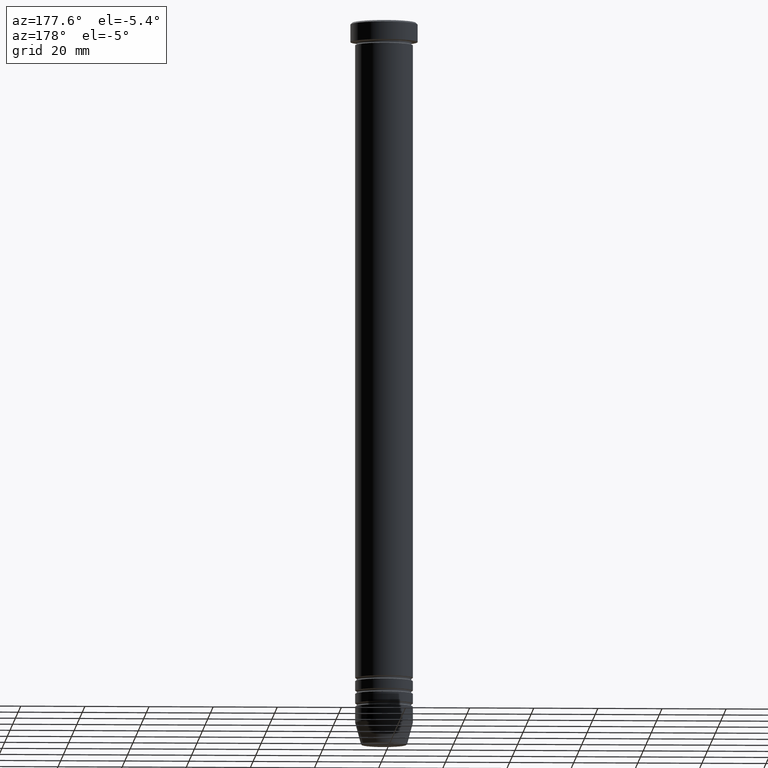
[diagram: clean part render]
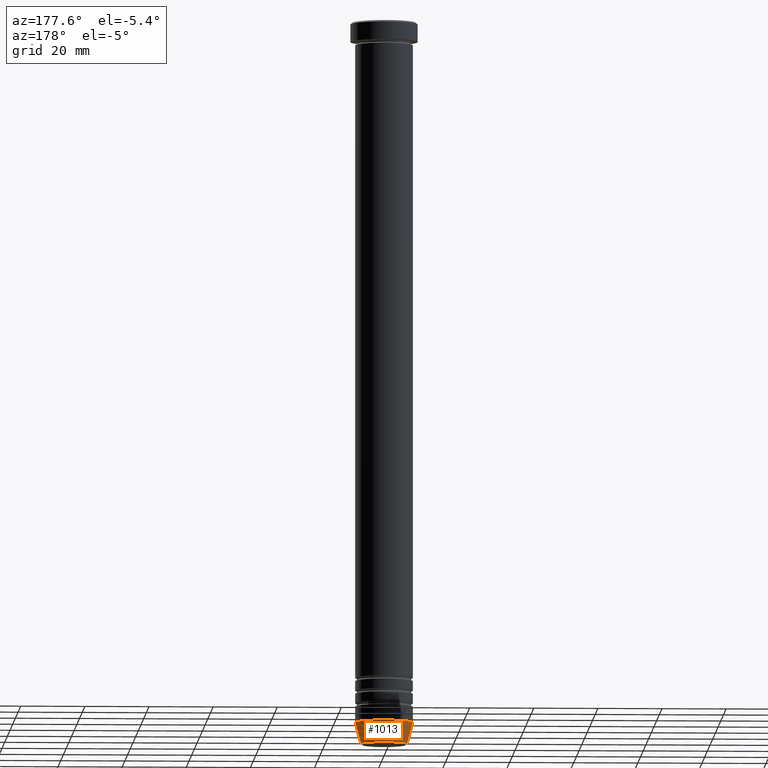
[diagram: same view with one face highlighted and labeled with its STEP entity id]
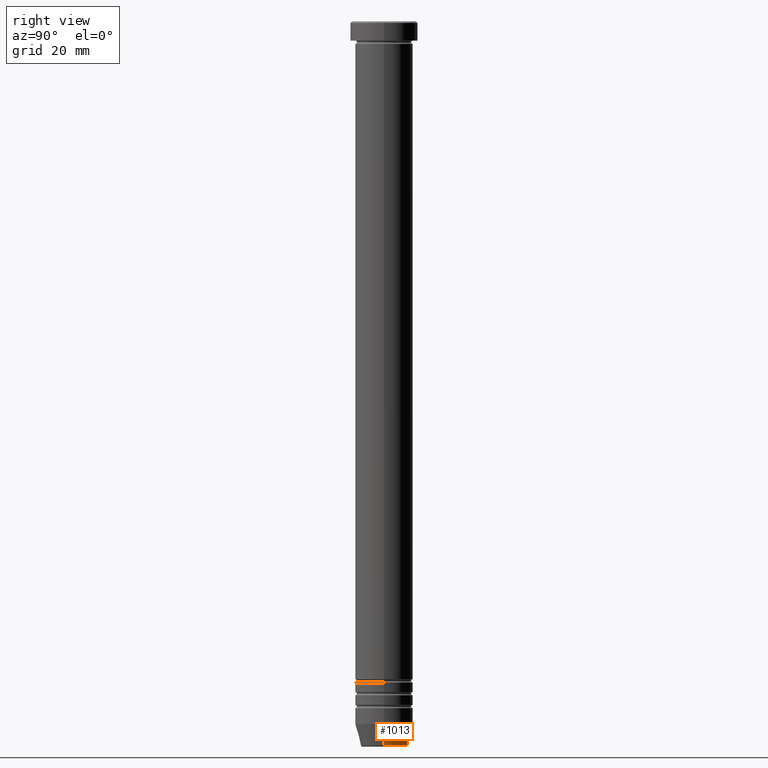
[diagram: same view with one face highlighted and labeled with its STEP entity id]
A machine part, auxiliary view. The second image highlights one B-rep face of the part: STEP entity #1013.
A second angle (right view) of the same face is appended — the face is thin or edge-on in the first view.
In plain terms, the highlighted conical surface has half-angle 15 deg.
Its self-contained STEP definition (entity closure, byte-faithful):
#14 = DIRECTION ( 'NONE',  ( -0.2588190451025205729, 3.169619151431761860E-17, 0.9659258262890683122 ) ) ;
#100 = DIRECTION ( 'NONE',  ( -1.000000000000000000, 0.000000000000000000, 0.000000000000000000 ) ) ;
#122 = AXIS2_PLACEMENT_3D ( 'NONE', #349, #1127, #880 ) ;
#169 = VERTEX_POINT ( 'NONE', #494 ) ;
#209 = ORIENTED_EDGE ( 'NONE', *, *, #701, .T. ) ;
#228 = LINE ( 'NONE', #661, #900 ) ;
#256 = CIRCLE ( 'NONE', #1100, 9.000000000000000000 ) ;
#284 = CARTESIAN_POINT ( 'NONE',  ( 7.223655072137196598, 0.000000000000000000, -225.6294095225512422 ) ) ;
#320 = CARTESIAN_POINT ( 'NONE',  ( 0.000000000000000000, 0.000000000000000000, -218.9999999999999716 ) ) ;
#325 = VERTEX_POINT ( 'NONE', #439 ) ;
#340 = ORIENTED_EDGE ( 'NONE', *, *, #667, .F. ) ;
#349 = CARTESIAN_POINT ( 'NONE',  ( 0.000000000000000000, 0.000000000000000000, -225.9999999999999716 ) ) ;
#372 = LINE ( 'NONE', #554, #1117 ) ;
#439 = CARTESIAN_POINT ( 'NONE',  ( -9.000000000000000000, 1.102182119232617714E-15, -218.9999999999999716 ) ) ;
#494 = CARTESIAN_POINT ( 'NONE',  ( -7.223655072137196598, 9.934123627281769054E-16, -225.6294095225512422 ) ) ;
#535 = CARTESIAN_POINT ( 'NONE',  ( 0.000000000000000000, 0.000000000000000000, -225.6294095225512422 ) ) ;
#539 = CARTESIAN_POINT ( 'NONE',  ( 9.000000000000000000, 0.000000000000000000, -218.9999999999999716 ) ) ;
#554 = CARTESIAN_POINT ( 'NONE',  ( 7.124355652982139908, 0.000000000000000000, -225.9999999999999716 ) ) ;
#557 = ORIENTED_EDGE ( 'NONE', *, *, #835, .F. ) ;
#577 = EDGE_CURVE ( 'NONE', #169, #325, #228, .T. ) ;
#661 = CARTESIAN_POINT ( 'NONE',  ( -7.124355652982139908, 8.724819346411930032E-16, -225.9999999999999716 ) ) ;
#663 = CONICAL_SURFACE ( 'NONE', #122, 7.124355652982139908, 0.2617993877991492413 ) ;
#666 = DIRECTION ( 'NONE',  ( -0.000000000000000000, -0.000000000000000000, 1.000000000000000000 ) ) ;
#667 = EDGE_CURVE ( 'NONE', #865, #946, #372, .T. ) ;
#701 = EDGE_CURVE ( 'NONE', #865, #169, #936, .T. ) ;
#713 = DIRECTION ( 'NONE',  ( 0.2588190451025205729, 0.000000000000000000, 0.9659258262890683122 ) ) ;
#757 = EDGE_LOOP ( 'NONE', ( #209, #849, #557, #340 ) ) ;
#835 = EDGE_CURVE ( 'NONE', #946, #325, #256, .T. ) ;
#849 = ORIENTED_EDGE ( 'NONE', *, *, #577, .T. ) ;
#865 = VERTEX_POINT ( 'NONE', #284 ) ;
#880 = DIRECTION ( 'NONE',  ( 1.000000000000000000, 0.000000000000000000, 0.000000000000000000 ) ) ;
#892 = DIRECTION ( 'NONE',  ( -0.000000000000000000, -0.000000000000000000, 1.000000000000000000 ) ) ;
#900 = VECTOR ( 'NONE', #14, 1000.000000000000114 ) ;
#936 = CIRCLE ( 'NONE', #1061, 7.223655072137196598 ) ;
#946 = VERTEX_POINT ( 'NONE', #539 ) ;
#1013 = ADVANCED_FACE ( 'NONE', ( #1141 ), #663, .T. ) ;
#1061 = AXIS2_PLACEMENT_3D ( 'NONE', #535, #892, #100 ) ;
#1087 = DIRECTION ( 'NONE',  ( 1.000000000000000000, 0.000000000000000000, 0.000000000000000000 ) ) ;
#1100 = AXIS2_PLACEMENT_3D ( 'NONE', #320, #666, #1087 ) ;
#1117 = VECTOR ( 'NONE', #713, 1000.000000000000114 ) ;
#1127 = DIRECTION ( 'NONE',  ( -0.000000000000000000, -0.000000000000000000, 1.000000000000000000 ) ) ;
#1141 = FACE_OUTER_BOUND ( 'NONE', #757, .T. ) ;